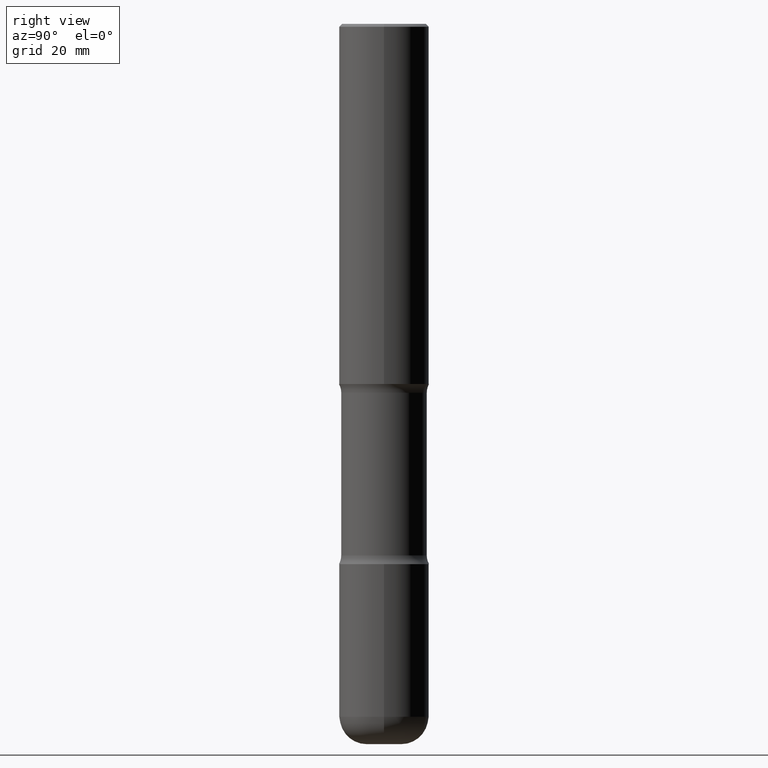
[diagram: clean part render]
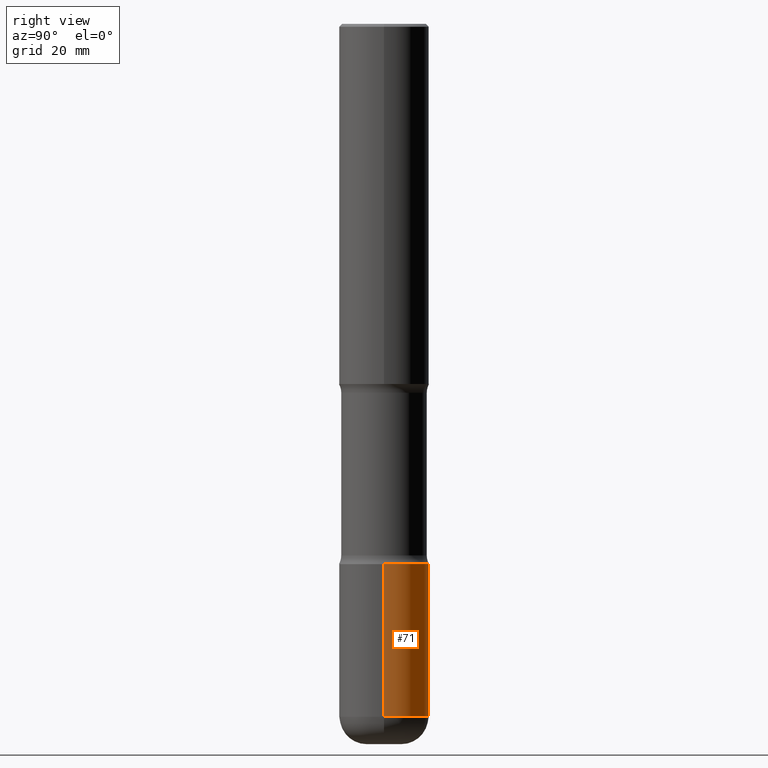
[diagram: same view with one face highlighted and labeled with its STEP entity id]
A machine part, right view. The second image highlights one B-rep face of the part: STEP entity #71.
In plain terms, the highlighted cylindrical surface (partial cylindrical patch) has radius 7.9375 mm, axis along (-0, 0, 1).
Its self-contained STEP definition (entity closure, byte-faithful):
#16 = DIRECTION ( 'NONE',  ( 1.000000000000000000, -6.982962677686264344E-15, 0.000000000000000000 ) ) ;
#39 = EDGE_CURVE ( 'NONE', #102, #417, #456, .T. ) ;
#59 = EDGE_LOOP ( 'NONE', ( #74, #343, #275, #65 ) ) ;
#62 = DIRECTION ( 'NONE',  ( 1.000000000000000000, -6.982962677686266711E-15, 4.876176775795935232E-29 ) ) ;
#65 = ORIENTED_EDGE ( 'NONE', *, *, #413, .F. ) ;
#69 = AXIS2_PLACEMENT_3D ( 'NONE', #198, #329, #377 ) ;
#71 = ADVANCED_FACE ( 'NONE', ( #332 ), #159, .T. ) ;
#74 = ORIENTED_EDGE ( 'NONE', *, *, #91, .T. ) ;
#91 = EDGE_CURVE ( 'NONE', #238, #102, #144, .T. ) ;
#102 = VERTEX_POINT ( 'NONE', #517 ) ;
#111 = LINE ( 'NONE', #363, #544 ) ;
#130 = CIRCLE ( 'NONE', #69, 0.3125000000000001665 ) ;
#144 = CIRCLE ( 'NONE', #381, 0.3125000000000002220 ) ;
#159 = CYLINDRICAL_SURFACE ( 'NONE', #469, 0.3125000000000001665 ) ;
#198 = CARTESIAN_POINT ( 'NONE',  ( 9.170508023194261117E-29, -1.309305502066179584E-14, -3.749999999999999556 ) ) ;
#199 = CARTESIAN_POINT ( 'NONE',  ( 0.000000000000000000, 0.000000000000000000, 0.000000000000000000 ) ) ;
#233 = CARTESIAN_POINT ( 'NONE',  ( 1.176270495775050811E-28, -1.679402523983553013E-14, -4.810000000000000497 ) ) ;
#238 = VERTEX_POINT ( 'NONE', #311 ) ;
#270 = EDGE_CURVE ( 'NONE', #487, #417, #130, .T. ) ;
#275 = ORIENTED_EDGE ( 'NONE', *, *, #270, .F. ) ;
#277 = DIRECTION ( 'NONE',  ( -2.445468806185136877E-29, 3.491481338843145188E-15, 1.000000000000000000 ) ) ;
#311 = CARTESIAN_POINT ( 'NONE',  ( 0.3125000000000001665, -1.897620107661249005E-14, -4.810000000000000497 ) ) ;
#325 = CARTESIAN_POINT ( 'NONE',  ( -0.3125000000000001665, 2.220446049250314264E-15, -1.537167215704658792E-29 ) ) ;
#329 = DIRECTION ( 'NONE',  ( -2.445468806185136597E-29, 3.491481338843145583E-15, 1.000000000000000000 ) ) ;
#332 = FACE_OUTER_BOUND ( 'NONE', #59, .T. ) ;
#343 = ORIENTED_EDGE ( 'NONE', *, *, #39, .T. ) ;
#349 = CARTESIAN_POINT ( 'NONE',  ( 0.3125000000000001665, -1.527523085743875418E-14, -3.749999999999999556 ) ) ;
#363 = CARTESIAN_POINT ( 'NONE',  ( 0.3125000000000001665, -2.182175836776959530E-15, 1.523805242436230636E-29 ) ) ;
#377 = DIRECTION ( 'NONE',  ( 1.000000000000000000, -6.982962677686265133E-15, 0.000000000000000000 ) ) ;
#381 = AXIS2_PLACEMENT_3D ( 'NONE', #233, #414, #16 ) ;
#413 = EDGE_CURVE ( 'NONE', #238, #487, #111, .T. ) ;
#414 = DIRECTION ( 'NONE',  ( -2.445468806185136597E-29, 3.491481338843145583E-15, 1.000000000000000000 ) ) ;
#417 = VERTEX_POINT ( 'NONE', #533 ) ;
#427 = VECTOR ( 'NONE', #494, 39.37007874015748143 ) ;
#456 = LINE ( 'NONE', #325, #427 ) ;
#469 = AXIS2_PLACEMENT_3D ( 'NONE', #199, #506, #62 ) ;
#487 = VERTEX_POINT ( 'NONE', #349 ) ;
#494 = DIRECTION ( 'NONE',  ( -2.445468806185136877E-29, 3.491481338843145188E-15, 1.000000000000000000 ) ) ;
#506 = DIRECTION ( 'NONE',  ( -2.445468806185136597E-29, 3.491481338843145583E-15, 1.000000000000000000 ) ) ;
#517 = CARTESIAN_POINT ( 'NONE',  ( -0.3125000000000001665, -1.457357919058521389E-14, -4.810000000000000497 ) ) ;
#533 = CARTESIAN_POINT ( 'NONE',  ( -0.3125000000000001665, -1.272309408099834754E-14, -3.749999999999999556 ) ) ;
#544 = VECTOR ( 'NONE', #277, 39.37007874015748143 ) ;